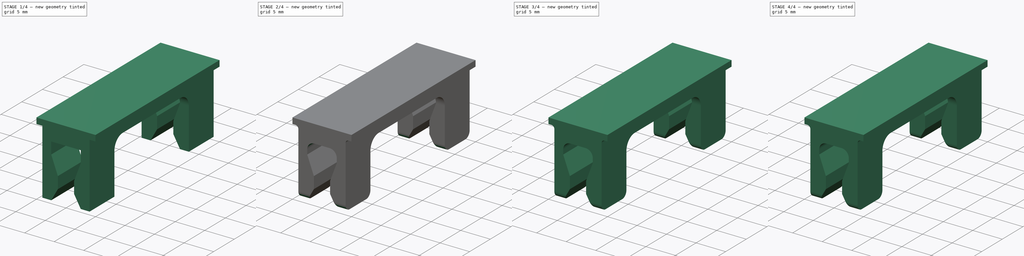
[diagram: build sequence overview — one tinted view per stage of 4, left to right]
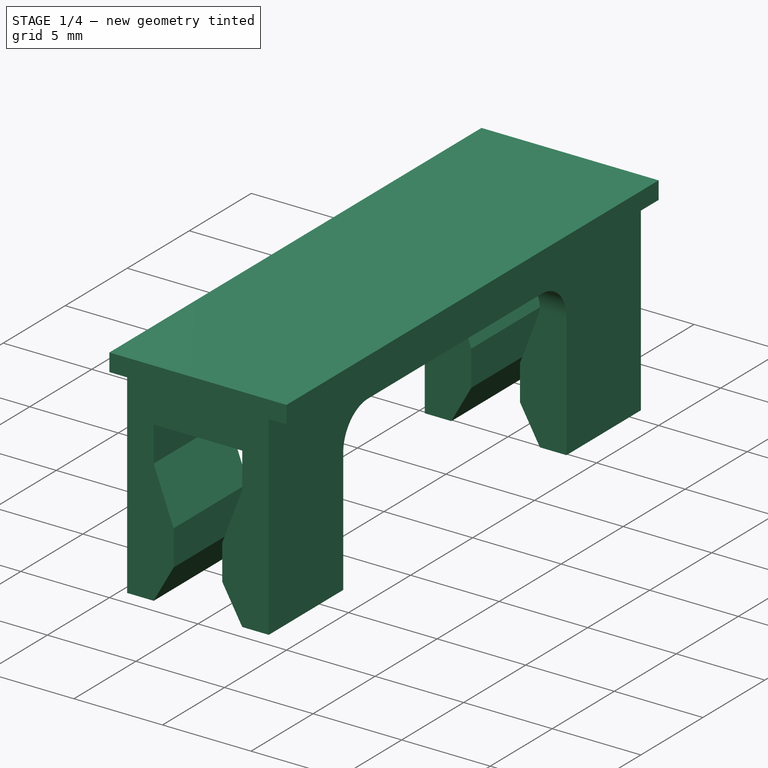
[diagram: stage 1 of 4 — iso view after this stage's code; geometry added in this stage tinted green]
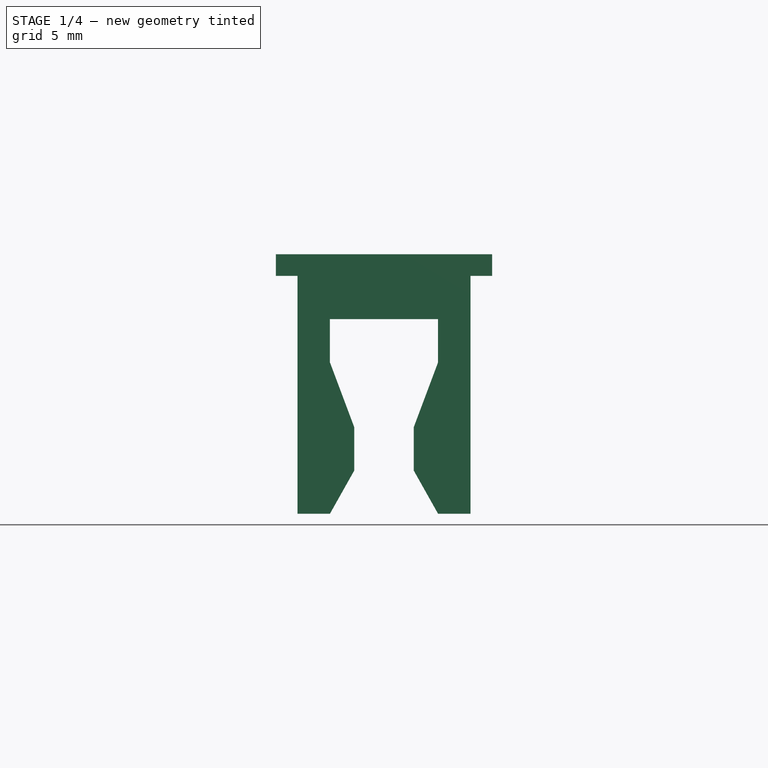
[diagram: stage 1 of 4 — front view after this stage's code; geometry added in this stage tinted green]
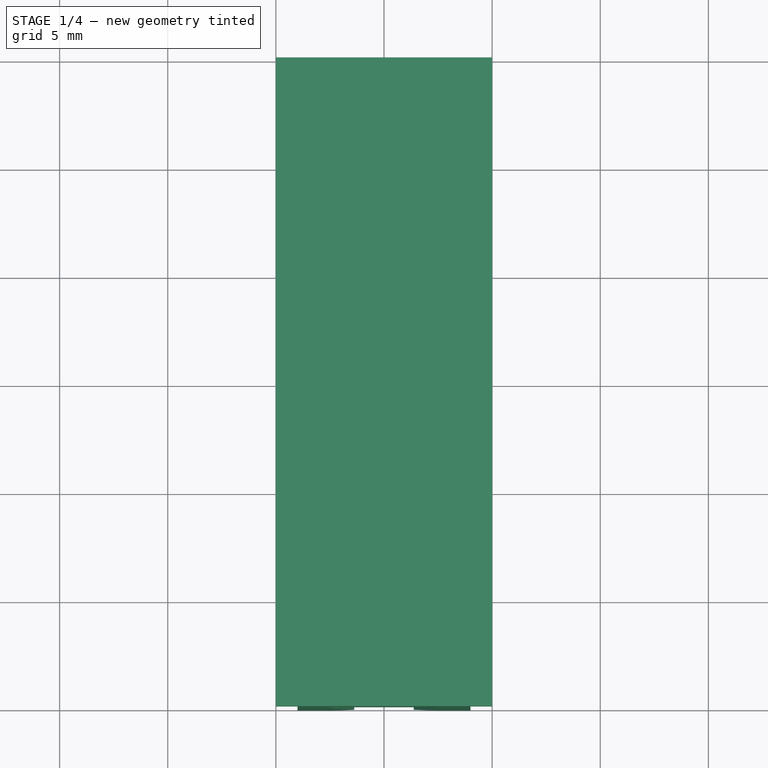
[diagram: stage 1 of 4 — top view after this stage's code; geometry added in this stage tinted green]
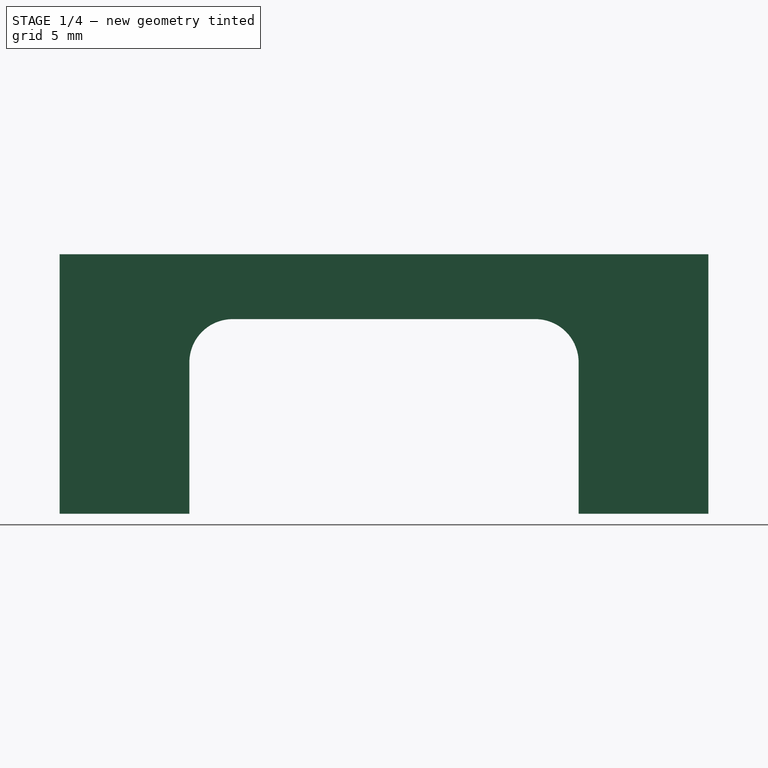
[diagram: stage 1 of 4 — right view after this stage's code; geometry added in this stage tinted green]
FCSTD DOCUMENT  (FreeCAD 0.18R15969 (Git))
Label: interface_clip_1
License: All rights reserved
LicenseURL: http://en.wikipedia.org/wiki/All_rights_reserved
objects: PartDesign::Body×8, PartDesign::FeatureBase×7, PartDesign::Fillet×4, Sketcher::SketchObject×3, PartDesign::Pocket×2, PartDesign::Pad×1
note: 28 computed .brp shape members not serialized (recipe doc carries the construction recipe); baked Part::Feature solids carry a one-line shape summary decoded from their .brp

FEATURE [Sketcher::SketchObject] Sketch
  MapMode = 5
  Placement = pos=(0,0,0) rot=(1,0,0;1.5708rad)
  Support = -> [XZ_Plane]
  sketch-geometry (24):
    g0: LineSegment StartX=0 StartY=0 StartZ=0 EndX=-2.5 EndY=0 EndZ=0
    g1: LineSegment StartX=0 StartY=0 StartZ=0 EndX=2.5 EndY=0 EndZ=0
    g2: LineSegment StartX=-2.5 StartY=0 StartZ=0 EndX=-2.5 EndY=-2 EndZ=0
    g3: LineSegment StartX=-2.5 StartY=-2 StartZ=0 EndX=-1.375 EndY=-5 EndZ=0
    g4: LineSegment StartX=-1.375 StartY=-5 StartZ=0 EndX=-1.375 EndY=-7 EndZ=0
    g5: LineSegment StartX=-1.375 StartY=-7 StartZ=0 EndX=-2.5 EndY=-9 EndZ=0
    g6: LineSegment StartX=2.5 StartY=0 StartZ=0 EndX=2.5 EndY=-2 EndZ=0
    g7: LineSegment StartX=2.5 StartY=-2 StartZ=0 EndX=1.375 EndY=-5 EndZ=0
    g8: LineSegment StartX=1.375 StartY=-5 StartZ=0 EndX=1.375 EndY=-7 EndZ=0
    g9: LineSegment StartX=1.375 StartY=-7 StartZ=0 EndX=2.5 EndY=-9 EndZ=0
    g10: LineSegment [constr] StartX=0 StartY=0 StartZ=0 EndX=-1.375 EndY=-5 EndZ=0
    g11: LineSegment [constr] StartX=0 StartY=0 StartZ=0 EndX=1.375 EndY=-5 EndZ=0
    g12: LineSegment StartX=-2.5 StartY=-9 StartZ=0 EndX=-4 EndY=-9 EndZ=0
    g13: LineSegment StartX=2.5 StartY=-9 StartZ=0 EndX=4 EndY=-9 EndZ=0
    g14: LineSegment StartX=-5 StartY=3 StartZ=0 EndX=5 EndY=3 EndZ=0
    g15: LineSegment [constr] StartX=-2.5 StartY=-9 StartZ=0 EndX=-2.5 EndY=-2 EndZ=0
    g16: LineSegment StartX=-4 StartY=-9 StartZ=0 EndX=-4 EndY=0 EndZ=0
    g17: LineSegment StartX=4 StartY=-9 StartZ=0 EndX=4 EndY=0 EndZ=0
    g18: LineSegment StartX=5 StartY=3 StartZ=0 EndX=5 EndY=2 EndZ=0
    g19: LineSegment StartX=5 StartY=2 StartZ=0 EndX=4 EndY=2 EndZ=0
    g20: LineSegment StartX=4 StartY=2 StartZ=0 EndX=4 EndY=0 EndZ=0
    g21: LineSegment StartX=-4 StartY=0 StartZ=0 EndX=-4 EndY=2 EndZ=0
    g22: LineSegment StartX=-4 StartY=2 StartZ=0 EndX=-5 EndY=2 EndZ=0
    g23: LineSegment StartX=-5 StartY=2 StartZ=0 EndX=-5 EndY=3 EndZ=0
  constraints (68):
    c: Coincident(g0,g-1)
    c: Coincident(g1,g0)
    c: PointOnObject(g1,g-1)
    c: Equal(g1,g0)
    c: PointOnObject(g0,g-1)
    c: DistanceX(g0,g1) = 5
    c: Coincident(g2,g0)
    c: Coincident(g3,g2)
    c: Coincident(g4,g3)
    c: Vertical(g4)
    c: Coincident(g5,g4)
    c: Coincident(g6,g1)
    c: Coincident(g7,g6)
    c: Coincident(g8,g7)
    c: Vertical(g8)
    c: Coincident(g9,g8)
    c: Vertical(g2)
    c: Vertical(g6)
    c: Equal(g6,g2)
    c: Coincident(g10,g0)
    c: Coincident(g10,g3)
    c: Coincident(g11,g0)
    c: Coincident(g11,g7)
    c: Equal(g11,g10)
    c: Equal(g3,g7)
    c: Equal(g4,g8)
    c: Coincident(g12,g5)
    c: Horizontal(g12)
    c: Coincident(g13,g9)
    c: Horizontal(g13)
    c: Equal(g13,g12)
    c: Equal(g5,g9)
    c: Horizontal(g14)
    c: DistanceY(g0,g14) = 3
    c: DistanceX(g4,g8) = 2.75
    c: DistanceY(g3,g0) = 5
    c: DistanceY(g8,g0) = 7
    c: Coincident(g15,g5)
    c: Coincident(g15,g2)
    c: Vertical(g15)
    c: DistanceY(g12,g14) = 12
    c: DistanceY(g2,g2) = 2
    c: Coincident(g16,g12)
    c: PointOnObject(g16,g-1)
    c: Vertical(g16)
    c: Coincident(g17,g13)
    c: PointOnObject(g17,g-1)
    c: Vertical(g17)
    c: Equal(g17,g16)
    c: DistanceX(g16,g17) = 8
    c: Coincident(g18,g14)
    c: Vertical(g18)
    c: Coincident(g19,g18)
    c: Horizontal(g19)
    c: Coincident(g20,g19)
    c: Coincident(g20,g17)
    c: Vertical(g20)
    c: Coincident(g21,g16)
    c: Vertical(g21)
    c: Coincident(g22,g21)
    c: Horizontal(g22)
    c: Coincident(g23,g22)
    c: Coincident(g23,g14)
    c: Vertical(g23)
    c: Equal(g18,g23)
    c: Equal(g22,g19)
    c: DistanceY(g23,g23) = 1
    c: DistanceX(g14,g14) = 10
FEATURE [PartDesign::Pad] Pad
  Length = 30
  Length2 = 100
  Midplane = true
  Placement = pos=(0,0,0) rot=(1,0,0;1.5708rad)
  Profile = -> Sketch
  Refine = true
  Type = 0
FEATURE [Sketcher::SketchObject] Sketch001
  MapMode = 5
  Placement = pos=(0,0,0) rot=(1,0,0;3.14159rad)
  Support = -> [Pad]
  sketch-geometry (7):
    g0: LineSegment StartX=-5 StartY=9 StartZ=0 EndX=5 EndY=9 EndZ=0
    g1: LineSegment StartX=5 StartY=9 StartZ=0 EndX=5 EndY=-9 EndZ=0
    g2: LineSegment StartX=5 StartY=-9 StartZ=0 EndX=-5 EndY=-9 EndZ=0
    g3: LineSegment StartX=-5 StartY=-9 StartZ=0 EndX=-5 EndY=9 EndZ=0
    g4: LineSegment [constr] StartX=-5 StartY=9 StartZ=0 EndX=0 EndY=0 EndZ=0
    g5: LineSegment [constr] StartX=0 StartY=0 StartZ=0 EndX=5 EndY=9 EndZ=0
    g6: LineSegment [constr] StartX=0 StartY=0 StartZ=0 EndX=-5 EndY=-9 EndZ=0
  constraints (18):
    c: Coincident(g0,g1)
    c: Coincident(g1,g2)
    c: Coincident(g2,g3)
    c: Coincident(g3,g0)
    c: Horizontal(g0)
    c: Horizontal(g2)
    c: Vertical(g1)
    c: Vertical(g3)
    c: Coincident(g4,g0)
    c: Coincident(g4,g-1)
    c: Coincident(g5,g-1)
    c: Coincident(g5,g0)
    c: Coincident(g6,g-1)
    c: Coincident(g6,g2)
    c: Equal(g6,g4)
    c: Equal(g4,g5)
    c: DistanceY(g1,g1) = 18
    c: DistanceX(g0,g0) = 10
FEATURE [PartDesign::Pocket] Pocket
  BaseFeature = -> Pad
  Length = 5
  Length2 = 100
  Placement = pos=(0,0,0) rot=(1,0,0;1.5708rad)
  Profile = -> Sketch001
  Refine = true
  Reversed = true
  Type = 1
FEATURE [PartDesign::Fillet] Fillet
  Base = -> Pocket [Edge76,Edge82,Edge24,Edge81]
  BaseFeature = -> Pocket
  Placement = pos=(0,0,0) rot=(1,0,0;1.5708rad)
  Radius = 2
FEATURE [Sketcher::SketchObject] Sketch002
  MapMode = 5
  Placement = pos=(0,0,0) rot=(1,0,0;3.14159rad)
  Support = -> [Fillet]
  sketch-geometry (5):
    g0: LineSegment StartX=-1 StartY=-1.84e-14 StartZ=0 EndX=1.84e-14 EndY=-1 EndZ=0
    g1: LineSegment StartX=1.84e-14 StartY=-1 StartZ=0 EndX=1 EndY=1.84e-14 EndZ=0
    g2: LineSegment StartX=1 StartY=1.84e-14 StartZ=0 EndX=-1.83e-14 EndY=1 EndZ=0
    g3: LineSegment StartX=-1.83e-14 StartY=1 StartZ=0 EndX=-1 EndY=-1.84e-14 EndZ=0
    g4: Circle [constr] CenterX=0 CenterY=0 CenterZ=0 NormalX=0 NormalY=0 NormalZ=1 AngleXU=0 Radius=1
  constraints (12):
    c: Coincident(g0,g1)
    c: Coincident(g1,g2)
    c: Coincident(g2,g3)
    c: Coincident(g3,g0)
    c: Equal(g0,g1)
    c: Equal(g0,g2)
    c: Equal(g0,g3)
    c: PointOnObject(g0,g4)
    c: PointOnObject(g1,g4)
    c: PointOnObject(g2,g4)
    c: PointOnObject(g3,g4)
    c: Coincident(g4,g-1)
FEATURE [PartDesign::Pocket] Pocket001
  BaseFeature = -> Fillet
  Length = 0.25
  Length2 = 100
  Placement = pos=(0,0,0) rot=(1,0,0;1.5708rad)
  Profile = -> Sketch002
  Type = 0
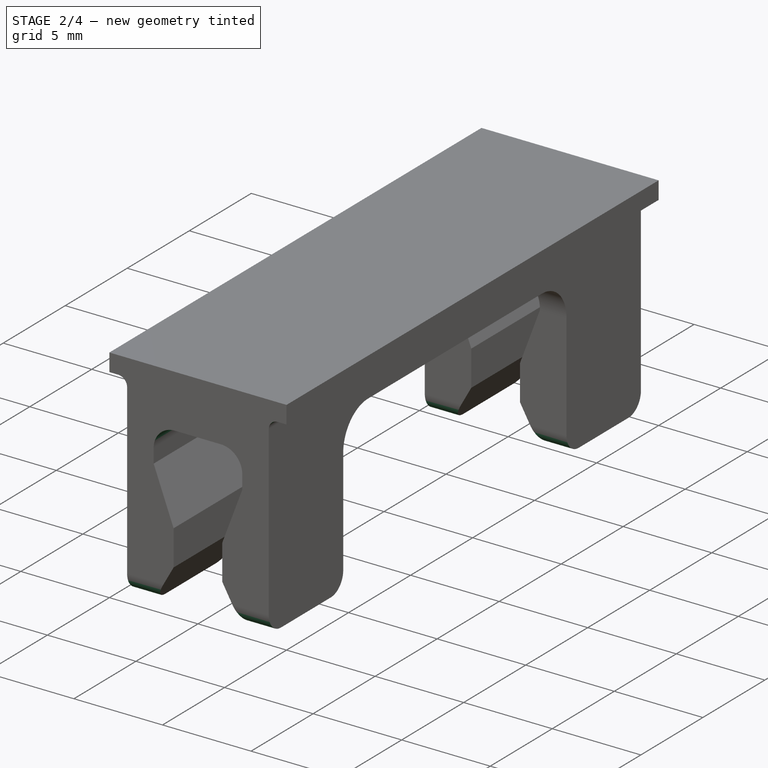
[diagram: stage 2 of 4 — iso view after this stage's code; geometry added in this stage tinted green]
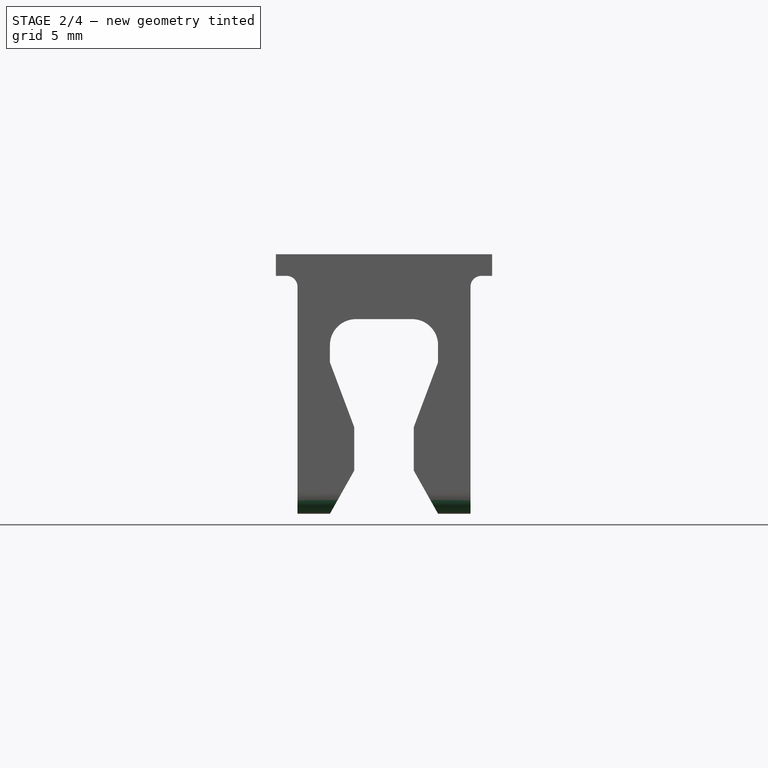
[diagram: stage 2 of 4 — front view after this stage's code; geometry added in this stage tinted green]
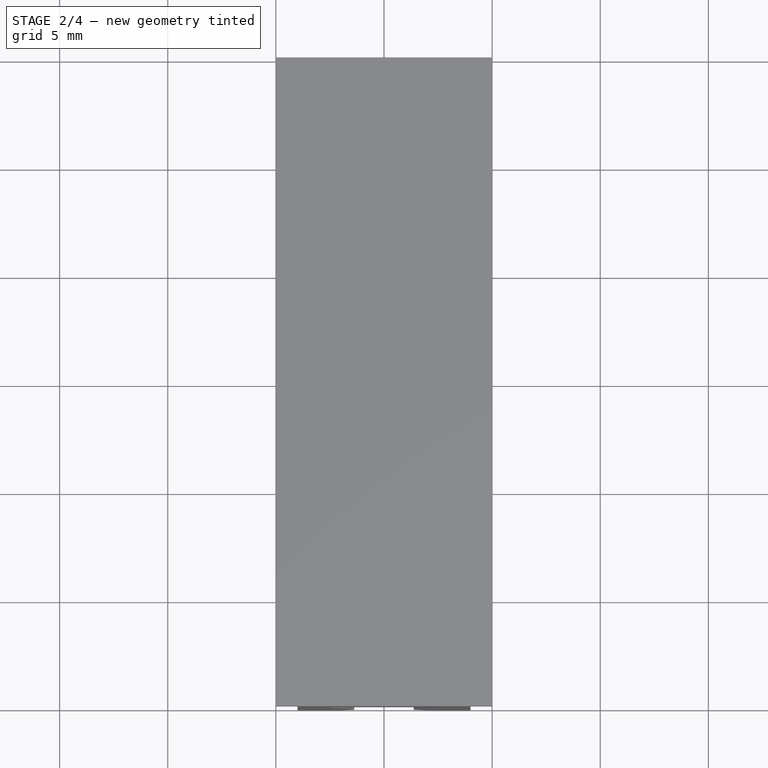
[diagram: stage 2 of 4 — top view after this stage's code; geometry added in this stage tinted green]
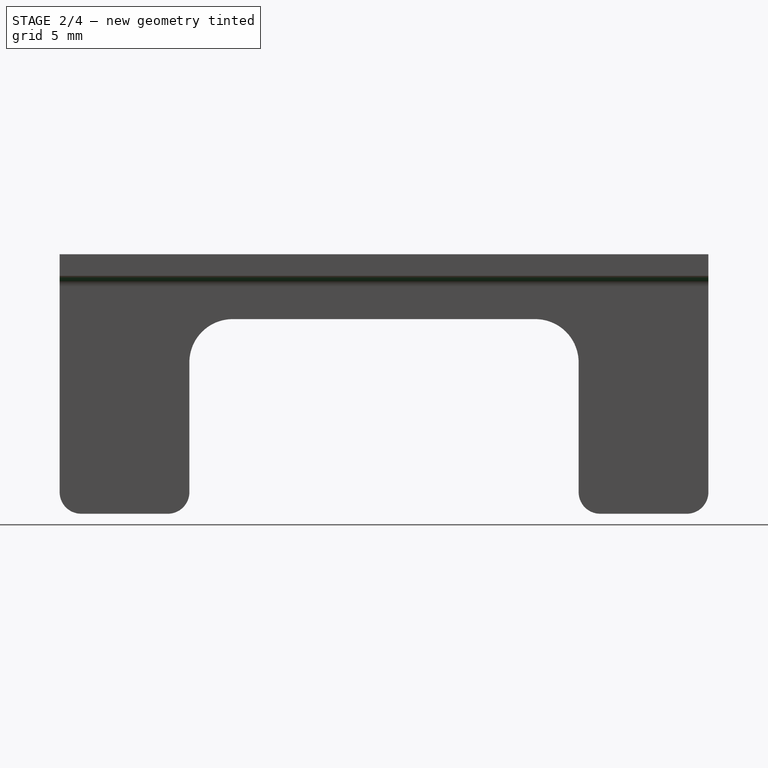
[diagram: stage 2 of 4 — right view after this stage's code; geometry added in this stage tinted green]
FEATURE [PartDesign::Fillet] Fillet001
  Base = -> Pocket001 [Edge52,Edge59]
  BaseFeature = -> Pocket001
  Placement = pos=(0,0,0) rot=(1,0,0;1.5708rad)
  Radius = 0.5
FEATURE [PartDesign::Fillet] Fillet002
  Base = -> Fillet001 [Edge59,Edge58,Edge50,Edge61]
  BaseFeature = -> Fillet001
  Placement = pos=(0,0,0) rot=(1,0,0;1.5708rad)
  Radius = 1.2
FEATURE [PartDesign::Fillet] Fillet003
  Base = -> Fillet002 [Edge126,Edge140,Edge135,Edge122,Edge63,Edge9,Edge16,Edge82]
  BaseFeature = -> Fillet002
  Placement = pos=(0,0,0) rot=(1,0,0;1.5708rad)
  Radius = 1
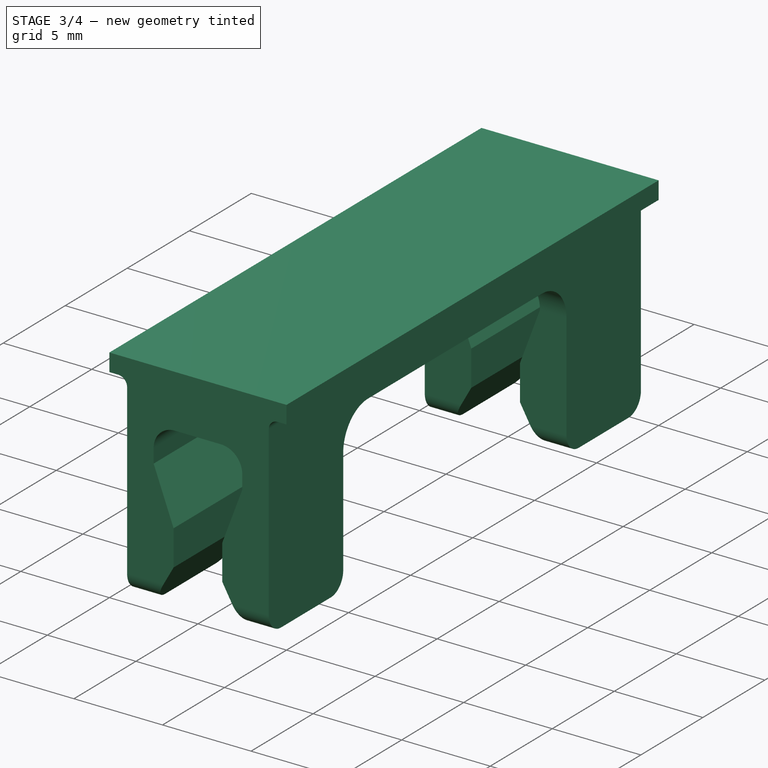
[diagram: stage 3 of 4 — iso view after this stage's code; geometry added in this stage tinted green]
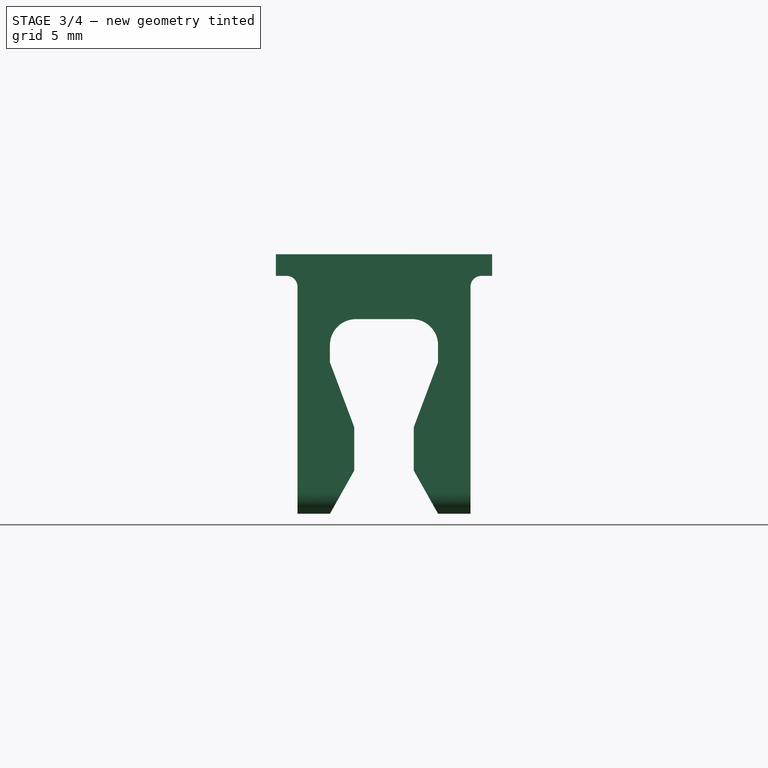
[diagram: stage 3 of 4 — front view after this stage's code; geometry added in this stage tinted green]
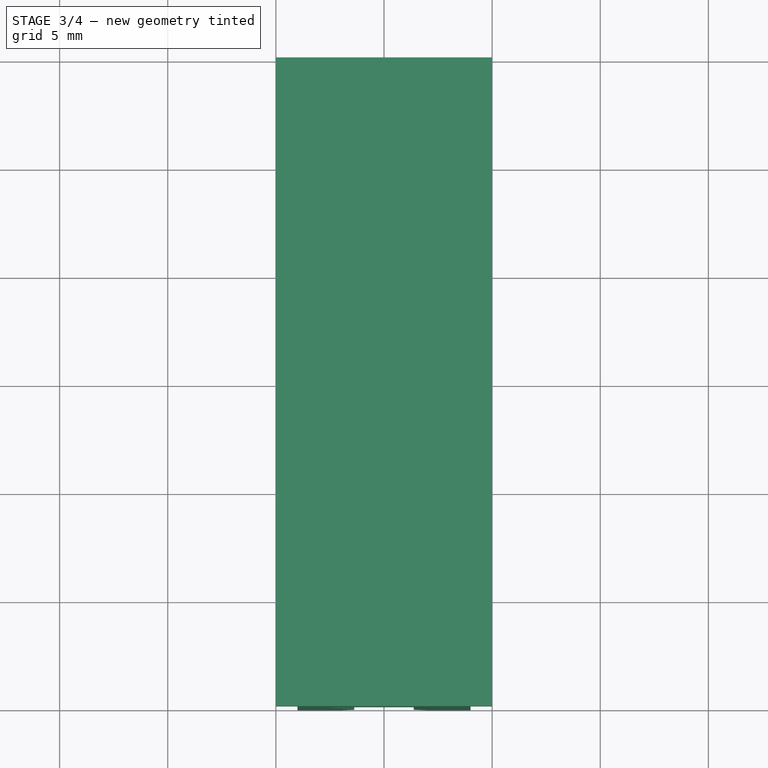
[diagram: stage 3 of 4 — top view after this stage's code; geometry added in this stage tinted green]
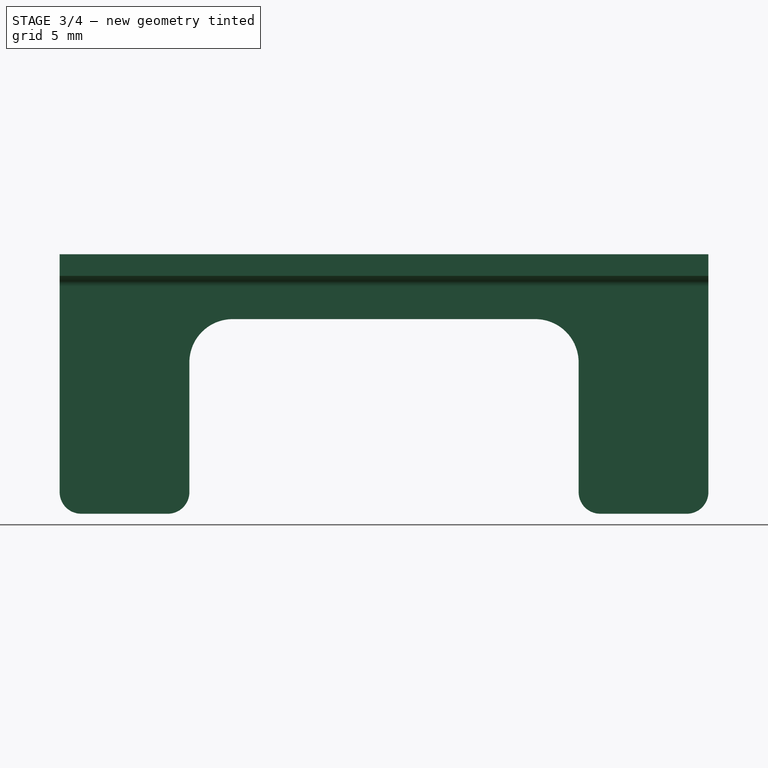
[diagram: stage 3 of 4 — right view after this stage's code; geometry added in this stage tinted green]
FEATURE [PartDesign::Body] Body004
  BaseFeature = -> Body
  Group = -> [Clone003]
  Origin = -> Origin004
  Placement = pos=(48,0,0) rot=(0,0,1;0rad)
  Tip = -> Clone003
FEATURE [PartDesign::FeatureBase] Clone004
  BaseFeature = -> Body
FEATURE [PartDesign::Body] Body005
  BaseFeature = -> Body
  Group = -> [Clone004]
  Origin = -> Origin005
  Placement = pos=(60,0,0) rot=(0,0,1;0rad)
  Tip = -> Clone004
FEATURE [PartDesign::FeatureBase] Clone005
  BaseFeature = -> Body
FEATURE [PartDesign::Body] Body006
  BaseFeature = -> Body
  Group = -> [Clone005]
  Origin = -> Origin006
  Placement = pos=(72,0,0) rot=(0,0,1;0rad)
  Tip = -> Clone005
FEATURE [PartDesign::FeatureBase] Clone006
  BaseFeature = -> Body
FEATURE [PartDesign::Body] Body007
  BaseFeature = -> Body
  Group = -> [Clone006]
  Origin = -> Origin007
  Placement = pos=(84,0,0) rot=(0,0,1;0rad)
  Tip = -> Clone006
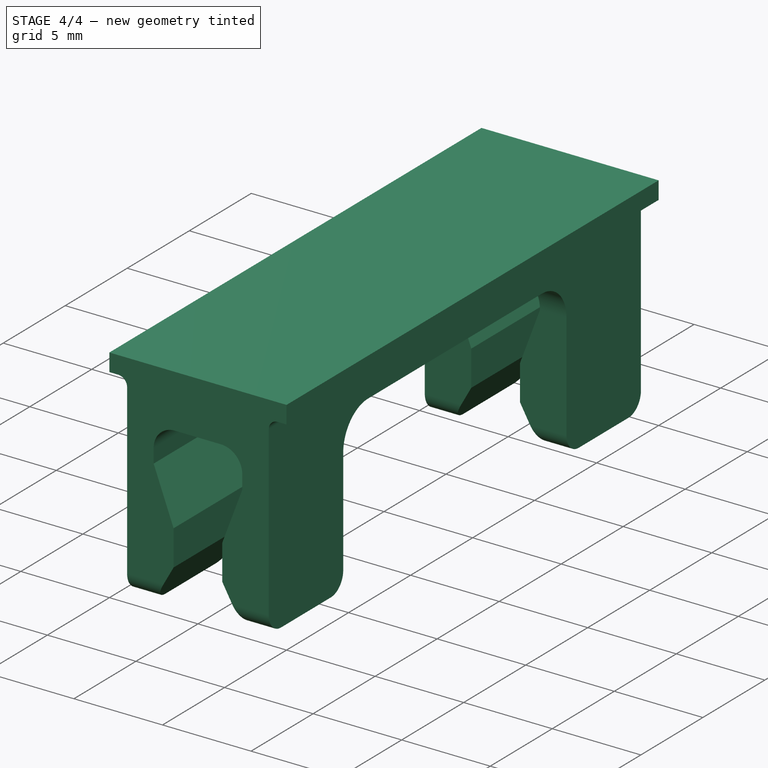
[diagram: stage 4 of 4 — iso view after this stage's code; geometry added in this stage tinted green]
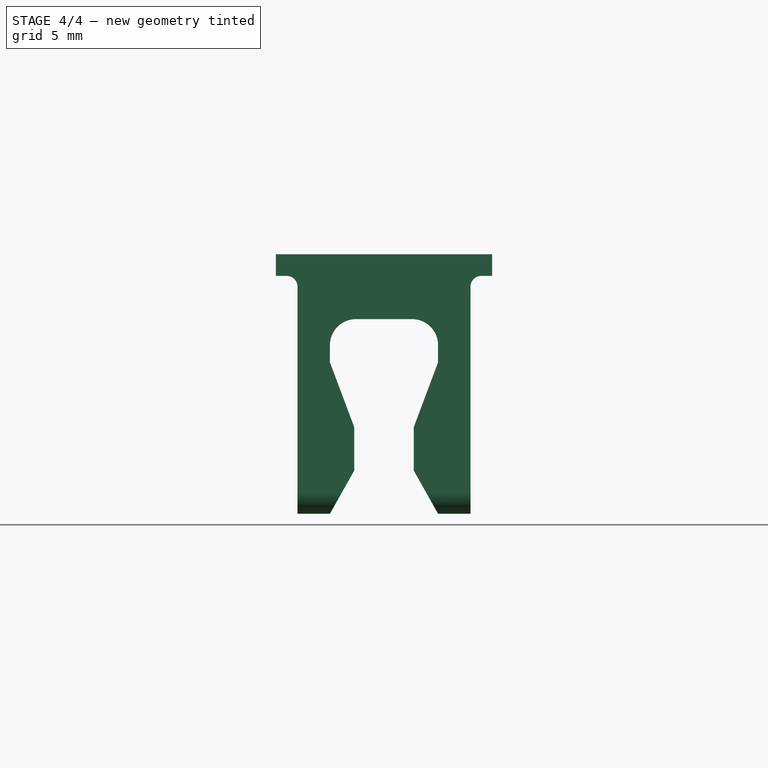
[diagram: stage 4 of 4 — front view after this stage's code; geometry added in this stage tinted green]
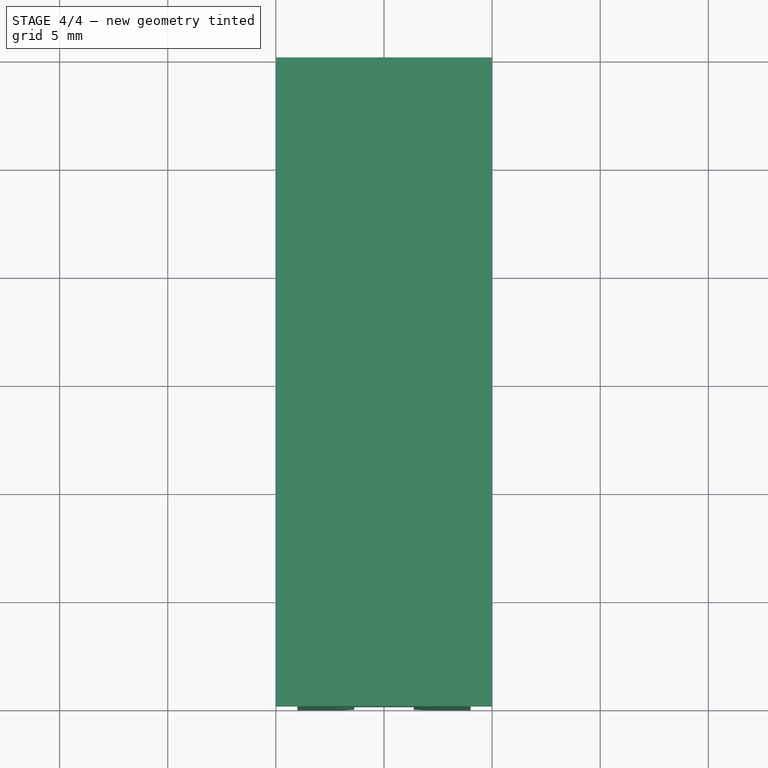
[diagram: stage 4 of 4 — top view after this stage's code; geometry added in this stage tinted green]
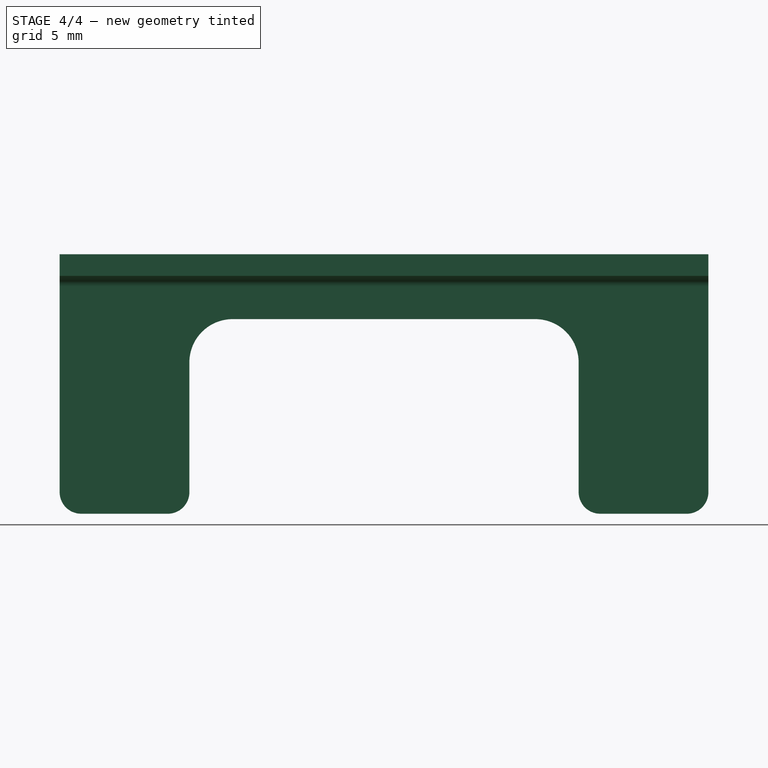
[diagram: stage 4 of 4 — right view after this stage's code; geometry added in this stage tinted green]
FEATURE [PartDesign::Body] Body
  Group = -> [Sketch,Pad,Sketch001,Pocket,Fillet,Sketch002,Pocket001,Fillet001,Fillet002,Fillet003]
  Origin = -> Origin
  Tip = -> Fillet003
FEATURE [PartDesign::FeatureBase] Clone
  BaseFeature = -> Body
FEATURE [PartDesign::Body] Body001
  BaseFeature = -> Body
  Group = -> [Clone]
  Origin = -> Origin001
  Placement = pos=(12,0,0) rot=(0,0,1;0rad)
  Tip = -> Clone
FEATURE [PartDesign::FeatureBase] Clone001
  BaseFeature = -> Body
FEATURE [PartDesign::Body] Body002
  BaseFeature = -> Body
  Group = -> [Clone001]
  Origin = -> Origin002
  Placement = pos=(24,0,0) rot=(0,0,1;0rad)
  Tip = -> Clone001
FEATURE [PartDesign::FeatureBase] Clone002
  BaseFeature = -> Body
FEATURE [PartDesign::Body] Body003
  BaseFeature = -> Body
  Group = -> [Clone002]
  Origin = -> Origin003
  Placement = pos=(36,0,0) rot=(0,0,1;0rad)
  Tip = -> Clone002
FEATURE [PartDesign::FeatureBase] Clone003
  BaseFeature = -> Body
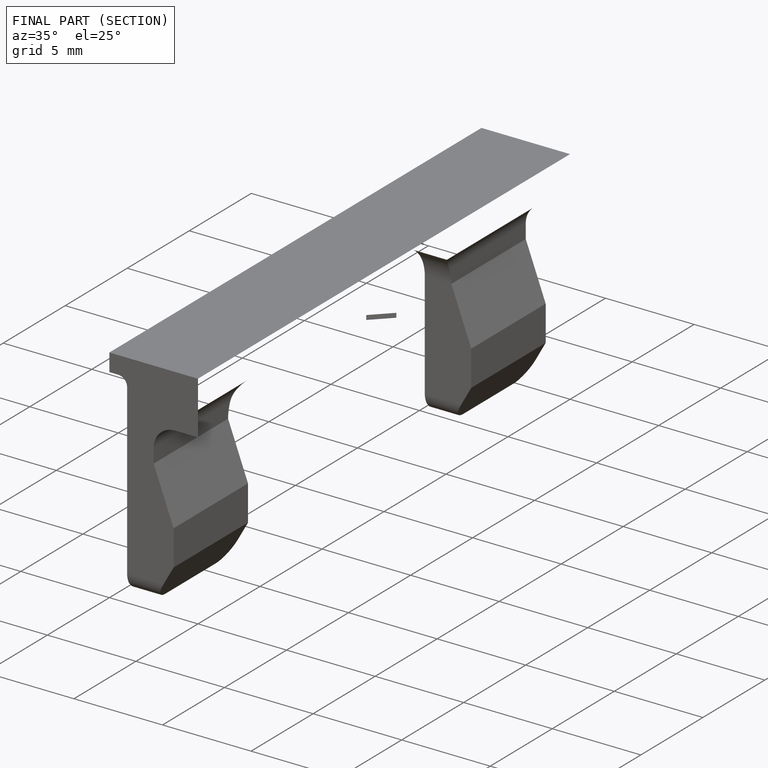
[diagram: finished part — half-section view (interior)]
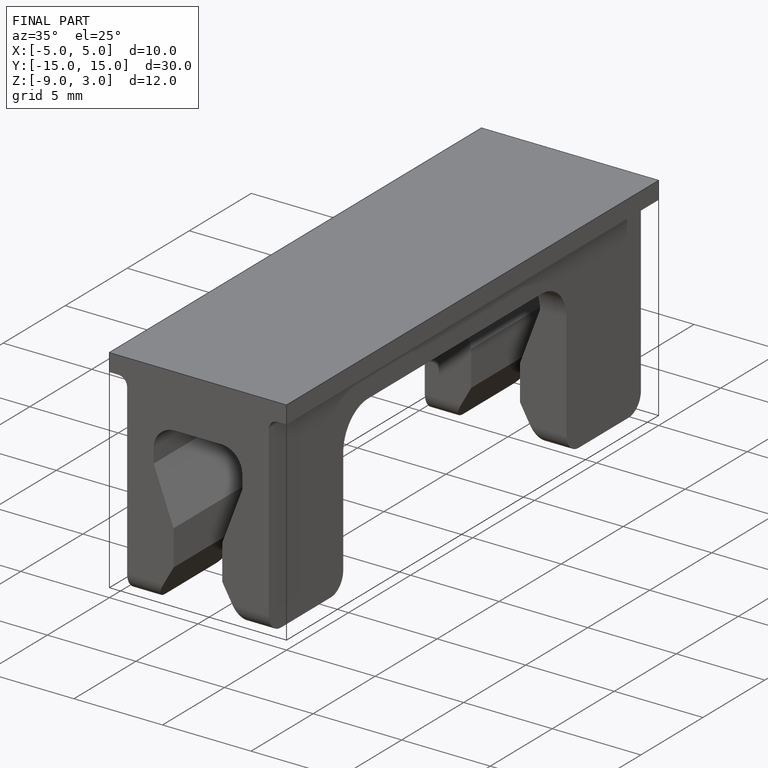
[diagram: finished part — iso view with bounding-box wireframe]
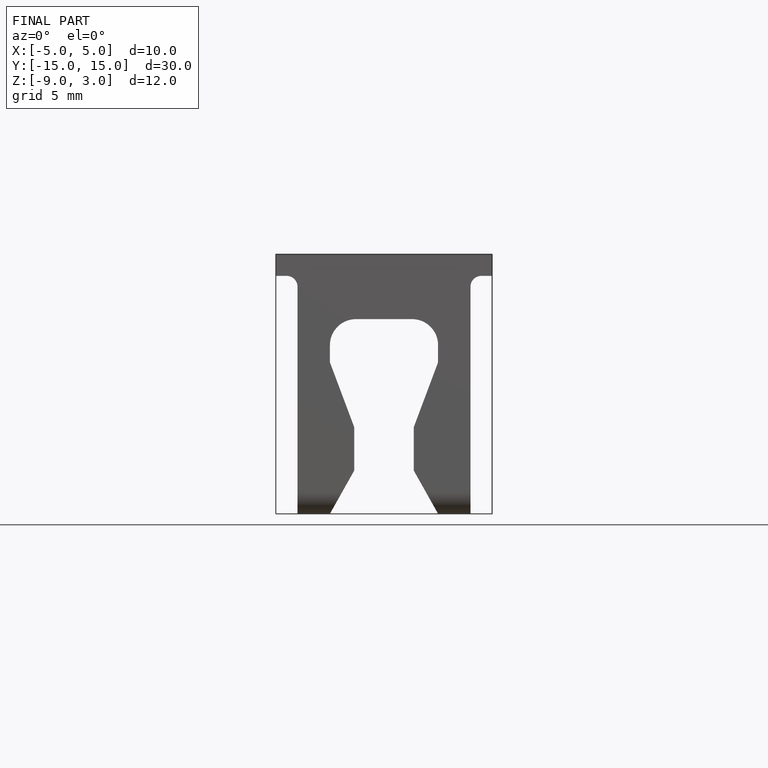
[diagram: finished part — front view with bounding-box wireframe]
